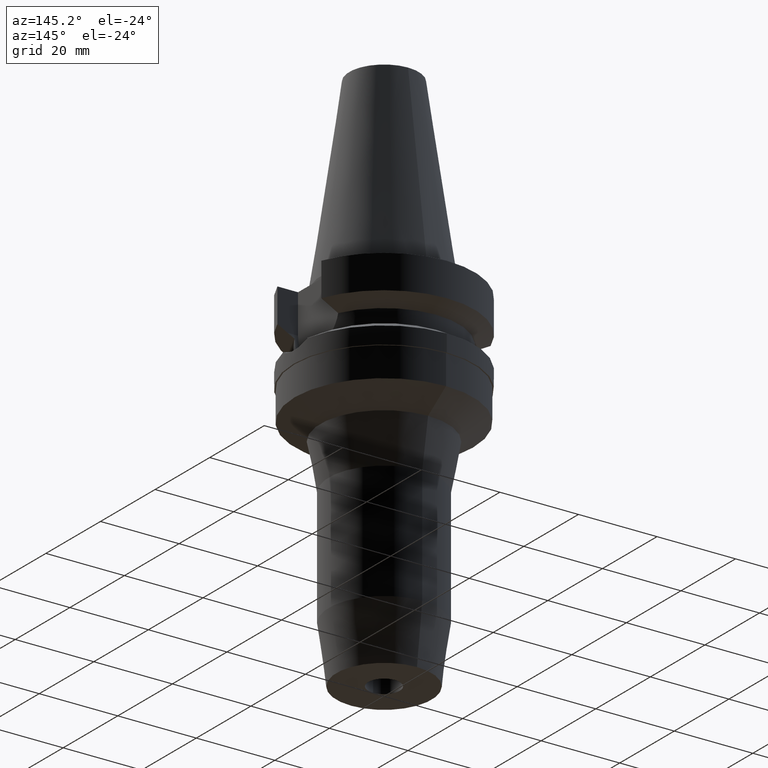
[diagram: clean part render]
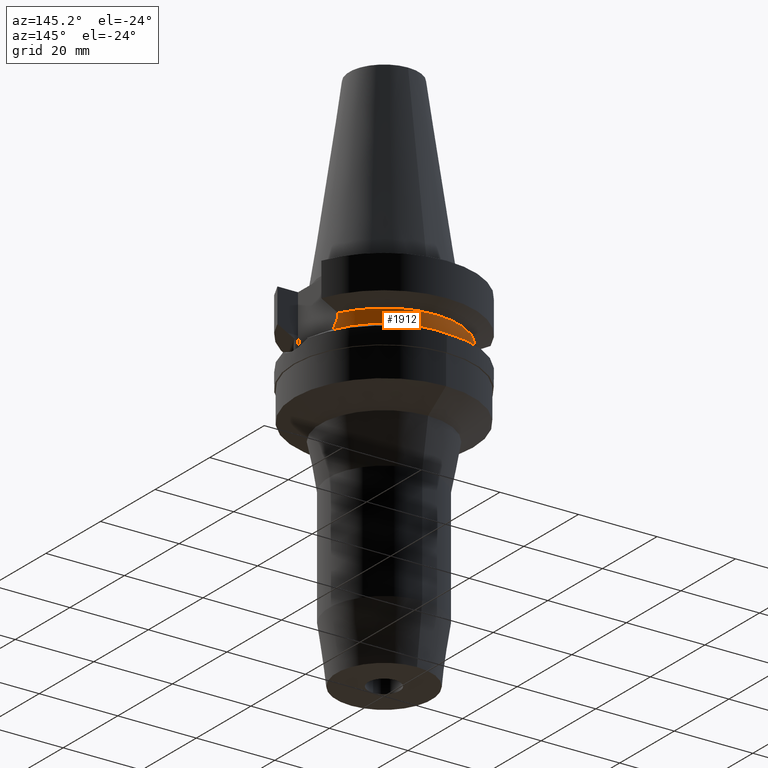
[diagram: same view with one face highlighted and labeled with its STEP entity id]
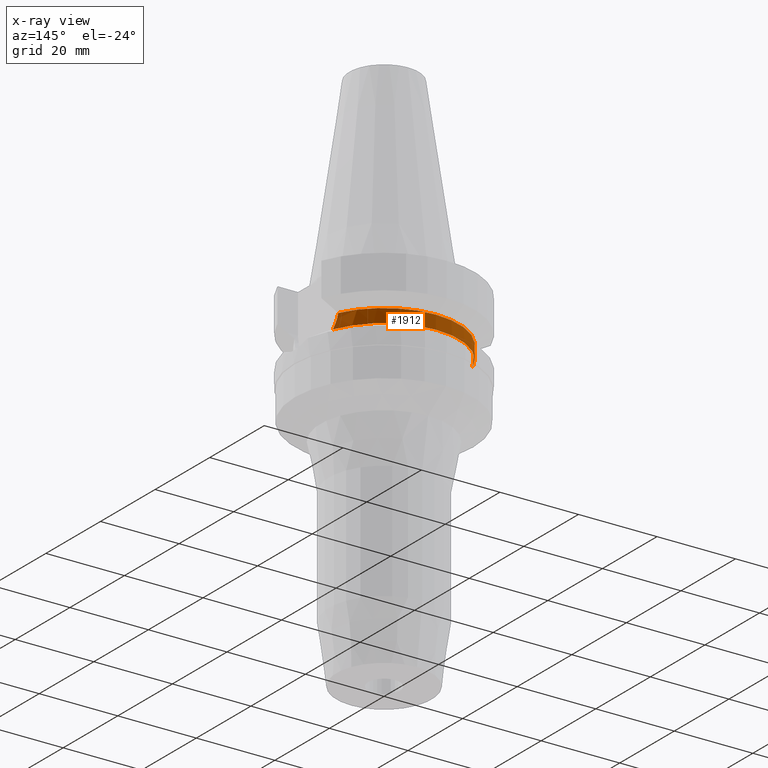
[diagram: x-ray of the same camera — body ghosted, the highlighted face saturated]
A machine part, auxiliary view. The second image highlights one B-rep face of the part: STEP entity #1912.
The next image is the same camera in x-ray: the body ghosted, the highlighted face saturated — about 0% of this face is hidden behind the body in this view.
In plain terms, the highlighted cylindrical surface (partial cylindrical patch) has radius 19 mm, axis along (0, 0, -1).
Its self-contained STEP definition (entity closure, byte-faithful):
#680=CARTESIAN_POINT('',(-1.775736593456E1,6.758398853744E0,-1.532339055353E1));
#718=CARTESIAN_POINT('',(0.E0,1.022848384030E-14,-1.532339055353E1));
#719=DIRECTION('',(0.E0,0.E0,1.E0));
#720=DIRECTION('',(9.345982070819E-1,3.557052028286E-1,0.E0));
#721=AXIS2_PLACEMENT_3D('',#718,#719,#720);
#726=CARTESIAN_POINT('',(0.E0,1.022848384030E-14,-1.532339055353E1));
#727=DIRECTION('',(0.E0,0.E0,1.E0));
#728=DIRECTION('',(0.E0,1.E0,0.E0));
#729=AXIS2_PLACEMENT_3D('',#726,#727,#728);
#734=CARTESIAN_POINT('',(-1.723531135311E1,7.996501749182E0,-1.187660739352E1));
#735=CARTESIAN_POINT('',(-1.725678396371E1,7.950220556071E0,-1.227600944528E1));
#736=CARTESIAN_POINT('',(-1.732661951186E1,7.799195850083E0,-1.306430063700E1));
#737=CARTESIAN_POINT('',(-1.750830536844E1,7.386233286177E0,-1.423035727494E1));
#738=CARTESIAN_POINT('',(-1.766916360058E1,6.990146217953E0,-1.496526083668E1));
#739=CARTESIAN_POINT('',(-1.775736593456E1,6.758398853744E0,-1.532339055353E1));
#744=CARTESIAN_POINT('',(1.775736593456E1,6.758398853744E0,-1.532339055353E1));
#745=CARTESIAN_POINT('',(1.766904681992E1,6.990453053498E0,-1.496478666979E1));
#746=CARTESIAN_POINT('',(1.750808050314E1,7.386758691375E0,-1.422913334760E1));
#747=CARTESIAN_POINT('',(1.732661211403E1,7.799205681587E0,-1.306410032602E1));
#748=CARTESIAN_POINT('',(1.725678434434E1,7.950219642125E0,-1.227592623867E1));
#749=CARTESIAN_POINT('',(1.723531622902E1,7.996491146276E0,-1.187660607782E1));
#764=CARTESIAN_POINT('',(0.E0,1.093341284897E-14,-1.187660944647E1));
#765=DIRECTION('',(0.E0,0.E0,-1.E0));
#766=DIRECTION('',(-9.071218755694E-1,4.208680349747E-1,0.E0));
#767=AXIS2_PLACEMENT_3D('',#764,#765,#766);
#772=CARTESIAN_POINT('',(0.E0,1.093341284897E-14,-1.187660944647E1));
#773=DIRECTION('',(0.E0,0.E0,-1.E0));
#774=DIRECTION('',(0.E0,1.E0,0.E0));
#775=AXIS2_PLACEMENT_3D('',#772,#773,#774);
#780=CARTESIAN_POINT('',(1.723531622902E1,7.996491146276E0,-1.187660607782E1));
#1216=VERTEX_POINT('',#780);
#1217=VERTEX_POINT('',#744);
#1222=VERTEX_POINT('',#680);
#1224=CARTESIAN_POINT('',(0.E0,1.9E1,-1.532339055353E1));
#1225=VERTEX_POINT('',#1224);
#1226=VERTEX_POINT('',#734);
#1239=CARTESIAN_POINT('',(0.E0,1.9E1,-1.187660944647E1));
#1240=VERTEX_POINT('',#1239);
#1897=CARTESIAN_POINT('',(0.E0,1.902121408436E-14,5.532E1));
#1898=DIRECTION('',(0.E0,0.E0,-1.E0));
#1899=DIRECTION('',(0.E0,-1.E0,0.E0));
#1900=AXIS2_PLACEMENT_3D('',#1897,#1898,#1899);
#1901=CYLINDRICAL_SURFACE('',#1900,1.9E1);
#1902=ORIENTED_EDGE('',*,*,#1847,.T.);
#1903=ORIENTED_EDGE('',*,*,#1892,.F.);
#1904=ORIENTED_EDGE('',*,*,#1890,.F.);
#1905=ORIENTED_EDGE('',*,*,#1812,.T.);
#1907=ORIENTED_EDGE('',*,*,#1906,.F.);
#1909=ORIENTED_EDGE('',*,*,#1908,.F.);
#1910=EDGE_LOOP('',(#1902,#1903,#1904,#1905,#1907,#1909));
#1911=FACE_OUTER_BOUND('',#1910,.F.);
#722=CIRCLE('',#721,1.9E1);
#730=CIRCLE('',#729,1.9E1);
#740=B_SPLINE_CURVE_WITH_KNOTS('',3,(#734,#735,#736,#737,#738,#739),
.UNSPECIFIED.,.F.,.F.,(4,1,1,4),(0.E0,3.333333333333E-1,6.666666666667E-1,1.E0),
.UNSPECIFIED.);
#750=B_SPLINE_CURVE_WITH_KNOTS('',3,(#744,#745,#746,#747,#748,#749),
.UNSPECIFIED.,.F.,.F.,(4,1,1,4),(0.E0,3.333333333333E-1,6.666666666667E-1,1.E0),
.UNSPECIFIED.);
#768=CIRCLE('',#767,1.9E1);
#776=CIRCLE('',#775,1.9E1);
#1812=EDGE_CURVE('',#1217,#1216,#750,.T.);
#1847=EDGE_CURVE('',#1226,#1222,#740,.T.);
#1890=EDGE_CURVE('',#1217,#1225,#722,.T.);
#1892=EDGE_CURVE('',#1225,#1222,#730,.T.);
#1906=EDGE_CURVE('',#1240,#1216,#776,.T.);
#1908=EDGE_CURVE('',#1226,#1240,#768,.T.);
#1912=ADVANCED_FACE('',(#1911),#1901,.T.);